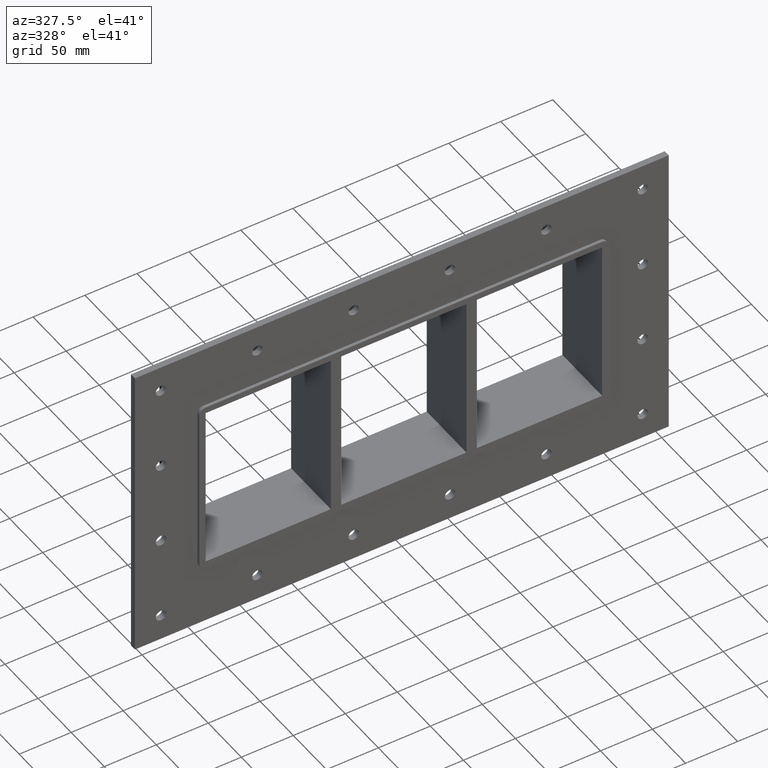
[diagram: clean part render]
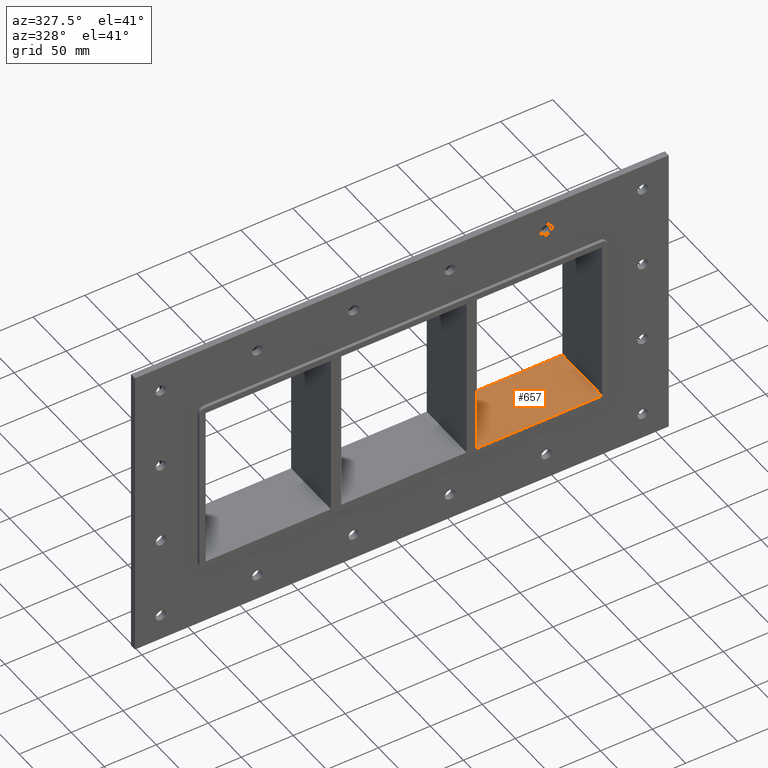
[diagram: same view with one face highlighted and labeled with its STEP entity id]
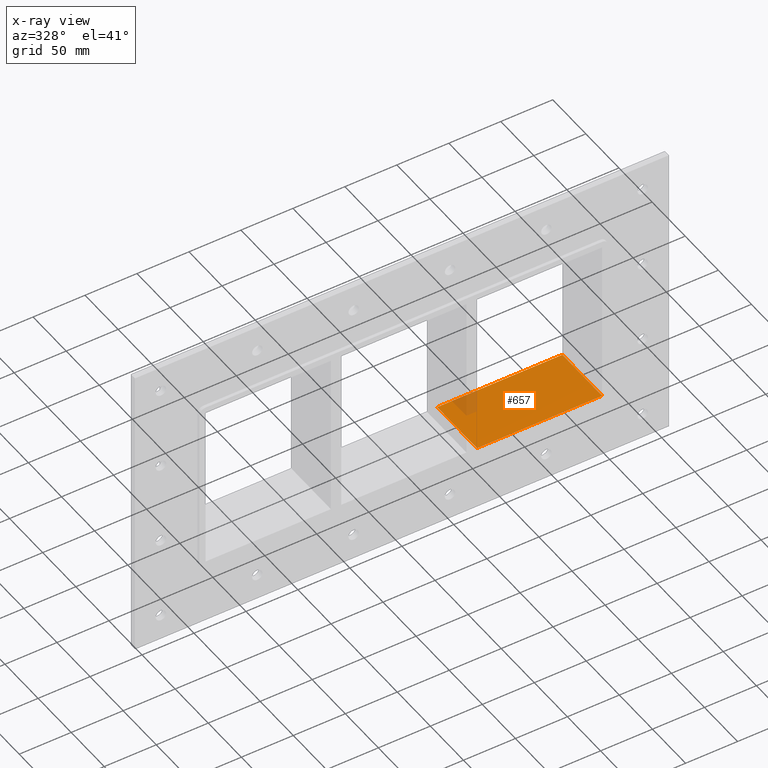
[diagram: x-ray of the same camera — body ghosted, the highlighted face saturated]
A machine part, auxiliary view. The second image highlights one B-rep face of the part: STEP entity #657.
The next image is the same camera in x-ray: the body ghosted, the highlighted face saturated — about 5% of this face is hidden behind the body in this view.
In plain terms, the highlighted planar face has unit normal (0, 0, -1).
Its self-contained STEP definition (entity closure, byte-faithful):
#563=CARTESIAN_POINT('',(70.250000000003638,-3.0,-79.749999999981796));
#564=VERTEX_POINT('',#563);
#571=CARTESIAN_POINT('',(70.250000000003638,57.0,-79.749999999981782));
#572=VERTEX_POINT('',#571);
#573=CARTESIAN_POINT('',(70.250000000003638,57.000000000000007,-79.750000000000014));
#574=DIRECTION('',(0.0,-1.0,0.0));
#575=VECTOR('',#574,60.000000000000007);
#576=LINE('',#573,#575);
#577=EDGE_CURVE('',#572,#564,#576,.T.);
#627=CARTESIAN_POINT('',(190.75000000000011,0.0,-79.750000000000014));
#628=DIRECTION('',(0.0,0.0,-1.0));
#629=DIRECTION('',(-1.0,0.0,0.0));
#630=AXIS2_PLACEMENT_3D('',#627,#628,#629);
#631=PLANE('',#630);
#632=ORIENTED_EDGE('',*,*,#577,.T.);
#633=CARTESIAN_POINT('',(190.75000000000011,-3.0,-79.750000000000014));
#634=VERTEX_POINT('',#633);
#635=CARTESIAN_POINT('',(190.75000000000011,-3.0,-79.750000000000014));
#636=DIRECTION('',(-1.0,0.0,0.0));
#637=VECTOR('',#636,120.49999999999646);
#638=LINE('',#635,#637);
#639=EDGE_CURVE('',#634,#564,#638,.T.);
#640=ORIENTED_EDGE('',*,*,#639,.F.);
#641=CARTESIAN_POINT('',(190.75000000000011,57.0,-79.750000000000014));
#642=VERTEX_POINT('',#641);
#643=CARTESIAN_POINT('',(190.75000000000011,56.999999999999993,-79.750000000000014));
#644=DIRECTION('',(0.0,-1.0,0.0));
#645=VECTOR('',#644,59.999999999999993);
#646=LINE('',#643,#645);
#647=EDGE_CURVE('',#642,#634,#646,.T.);
#648=ORIENTED_EDGE('',*,*,#647,.F.);
#649=CARTESIAN_POINT('',(70.250000000003652,57.0,-79.750000000000014));
#650=DIRECTION('',(1.0,0.0,0.0));
#651=VECTOR('',#650,120.49999999999646);
#652=LINE('',#649,#651);
#653=EDGE_CURVE('',#572,#642,#652,.T.);
#654=ORIENTED_EDGE('',*,*,#653,.F.);
#655=EDGE_LOOP('',(#632,#640,#648,#654));
#656=FACE_OUTER_BOUND('',#655,.T.);
#657=ADVANCED_FACE('',(#656),#631,.F.);